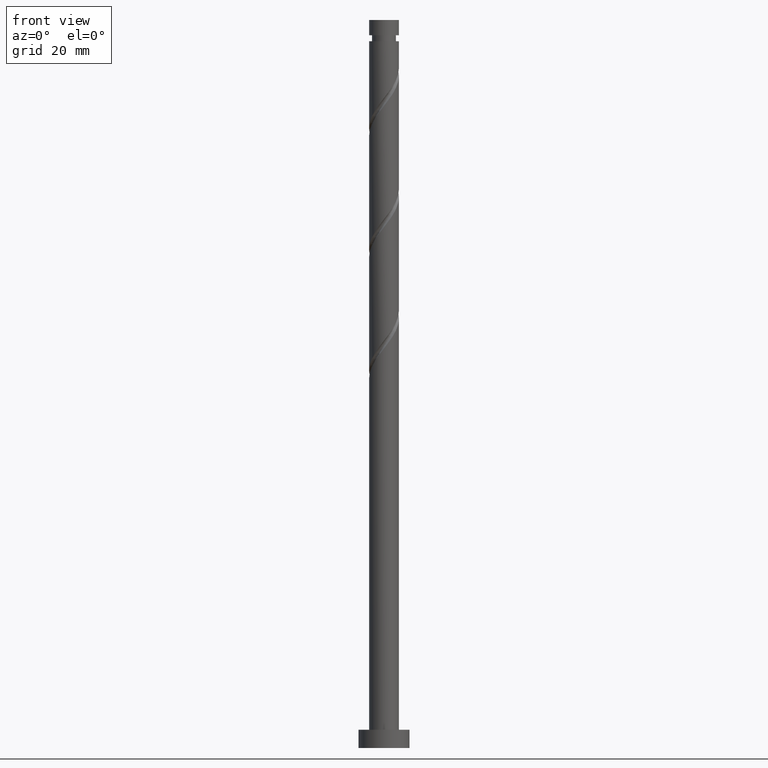
[diagram: clean part render]
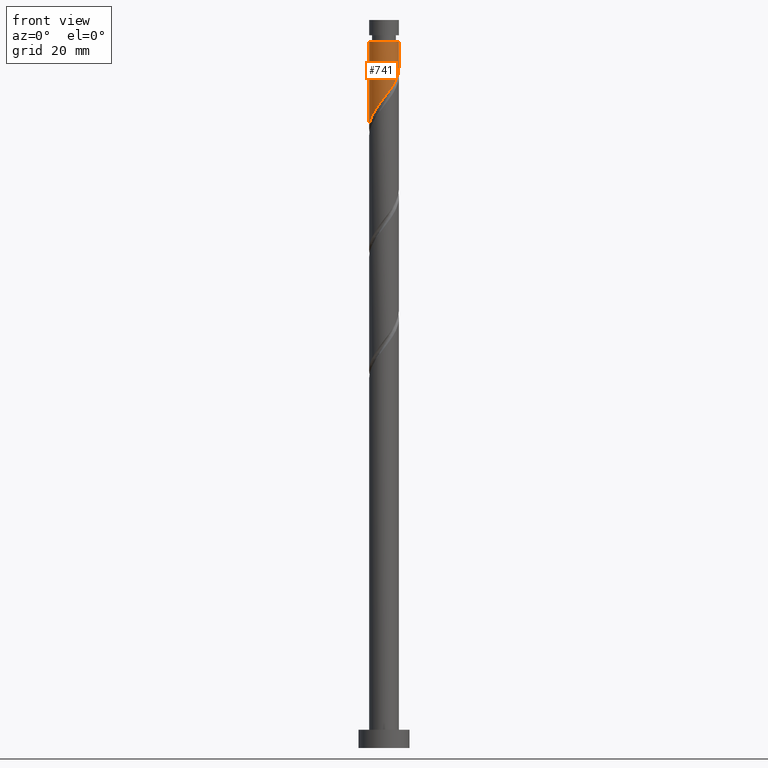
[diagram: same view with one face highlighted and labeled with its STEP entity id]
A machine part, front view. The second image highlights one B-rep face of the part: STEP entity #741.
In plain terms, the highlighted cylindrical surface (edge-blend (fillet) strip) has radius 4.1 mm, axis along (-0, -0, -1).
Its self-contained STEP definition (entity closure, byte-faithful):
#4 = CARTESIAN_POINT ( 'NONE',  ( -0.8158896984274295328, -4.017999999999999794, 177.5030105657672550 ) ) ;
#44 = EDGE_CURVE ( 'NONE', #384, #704, #992, .T. ) ;
#86 = FACE_OUTER_BOUND ( 'NONE', #113, .T. ) ;
#113 = EDGE_LOOP ( 'NONE', ( #807, #1036, #216, #171 ) ) ;
#143 = CARTESIAN_POINT ( 'NONE',  ( -4.099999999999999645, -0.1260420017964588579, 170.3964075756721286 ) ) ;
#171 = ORIENTED_EDGE ( 'NONE', *, *, #861, .F. ) ;
#199 = DIRECTION ( 'NONE',  ( -0.000000000000000000, -0.000000000000000000, -1.000000000000000000 ) ) ;
#216 = ORIENTED_EDGE ( 'NONE', *, *, #44, .T. ) ;
#247 = CARTESIAN_POINT ( 'NONE',  ( -4.099999999999988098, 0.000000000000000000, 194.1696772324338838 ) ) ;
#261 = CARTESIAN_POINT ( 'NONE',  ( -4.059101608817096363, -0.7906019473366217021, 171.2530105657672550 ) ) ;
#268 = CARTESIAN_POINT ( 'NONE',  ( -3.119984136109578809, -2.714232175083510334, 174.0307883435450265 ) ) ;
#326 = CARTESIAN_POINT ( 'NONE',  ( 4.099999999999988098, 5.021051876504139497E-16, 194.1696772324338838 ) ) ;
#334 = AXIS2_PLACEMENT_3D ( 'NONE', #1066, #523, #428 ) ;
#372 = CARTESIAN_POINT ( 'NONE',  ( -2.311178274938777921, -3.429258271300809291, 175.4196772324339122 ) ) ;
#382 = CARTESIAN_POINT ( 'NONE',  ( 3.429258271300807515, -2.311178274938780142, 183.7530105657672266 ) ) ;
#384 = VERTEX_POINT ( 'NONE', #247 ) ;
#392 = CARTESIAN_POINT ( 'NONE',  ( -0.2869099631212738699, -4.125413916553799965, 178.1974550102116837 ) ) ;
#401 = CARTESIAN_POINT ( 'NONE',  ( 3.910586083446199179, -1.344869433733588915, 185.1418994546560839 ) ) ;
#409 = CARTESIAN_POINT ( 'NONE',  ( 0.7906019473366207029, -4.059101608817097251, 179.5863438991005125 ) ) ;
#428 = DIRECTION ( 'NONE',  ( -1.000000000000000000, 0.000000000000000000, 0.000000000000000000 ) ) ;
#477 = CARTESIAN_POINT ( 'NONE',  ( 4.099999999999999645, 5.021051876504147385E-16, 200.0000000000000000 ) ) ;
#521 = CARTESIAN_POINT ( 'NONE',  ( -1.828023854336182419, -3.669922177373505345, 176.1141216768783124 ) ) ;
#523 = DIRECTION ( 'NONE',  ( -0.000000000000000000, -0.000000000000000000, -1.000000000000000000 ) ) ;
#529 = CARTESIAN_POINT ( 'NONE',  ( 0.2518459921076732222, -4.092257762685446387, 178.8918994546561123 ) ) ;
#540 = CARTESIAN_POINT ( 'NONE',  ( -1.344869433733587361, -3.910586083446200956, 176.8085661213227411 ) ) ;
#580 = EDGE_CURVE ( 'NONE', #1131, #384, #1112, .T. ) ;
#649 = CARTESIAN_POINT ( 'NONE',  ( -4.092257762685445499, -0.2518459921076746100, 170.5585661213227411 ) ) ;
#659 = CARTESIAN_POINT ( 'NONE',  ( 4.100000000000001421, -0.4120655042562799131, 186.3664841851213794 ) ) ;
#673 = CARTESIAN_POINT ( 'NONE',  ( 1.814235641615018935, -3.716168234422080996, 180.9752327879894551 ) ) ;
#683 = EDGE_CURVE ( 'NONE', #1131, #996, #749, .T. ) ;
#704 = VERTEX_POINT ( 'NONE', #815 ) ;
#741 = ADVANCED_FACE ( 'NONE', ( #86 ), #907, .T. ) ;
#749 = LINE ( 'NONE', #477, #1714 ) ;
#801 = CARTESIAN_POINT ( 'NONE',  ( -2.715581205524179254, -3.071745223192158480, 174.7252327879894267 ) ) ;
#807 = ORIENTED_EDGE ( 'NONE', *, *, #683, .F. ) ;
#811 =( BOUNDED_CURVE ( )  B_SPLINE_CURVE ( 2, ( #1332, #659, #926, #401, #1212, #382, #1220, #1643, #1634, #673, #1480, #409, #529, #392, #4, #540, #521, #372, #801, #268, #934, #1089, #1073, #261, #649, #143, #1227 ),
 .UNSPECIFIED., .F., .T. ) 
 B_SPLINE_CURVE_WITH_KNOTS ( ( 3, 2, 2, 2, 2, 2, 2, 2, 2, 2, 2, 2, 2, 3 ),
 ( 0.3045317669814462946, 0.3125000000000000000, 0.3229166666666666852, 0.3333333333333333148, 0.3437500000000000000, 0.3541666666666666852, 0.3645833333333333148, 0.3750000000000000000, 0.3854166666666666852, 0.3958333333333333148, 0.4062500000000000000, 0.4166666666666666852, 0.4270833333333333148, 0.4295317669814462946 ),
 .UNSPECIFIED. ) 
 CURVE ( )  GEOMETRIC_REPRESENTATION_ITEM ( )  RATIONAL_B_SPLINE_CURVE ( ( 0.9062941362546406143, 0.9031415850403449186, 0.9090909090909202739, 0.9013135103398387526, 0.9090909090909202739, 0.9013135103398387526, 0.9090909090909202739, 0.9013135103398387526, 0.9090909090909202739, 0.9013135103398387526, 0.9090909090909202739, 0.9013135103398387526, 0.9090909090909202739, 0.9013135103398387526, 0.9090909090909202739, 0.9013135103398387526, 0.9090909090909202739, 0.9013135103398387526, 0.9090909090909202739, 0.9013135103398387526, 0.9090909090909202739, 0.9013135103398387526, 0.9090909090909202739, 0.9013135103398387526, 0.9090909090909202739, 0.9072628343904141079, 0.9062941362546406143 ) ) 
 REPRESENTATION_ITEM ( '' )  );
#815 = CARTESIAN_POINT ( 'NONE',  ( -4.099999999999999645, -2.661773630964386005E-15, 170.2332438876439369 ) ) ;
#861 = EDGE_CURVE ( 'NONE', #996, #704, #811, .T. ) ;
#907 = CYLINDRICAL_SURFACE ( 'NONE', #1509, 4.099999999999999645 ) ;
#926 = CARTESIAN_POINT ( 'NONE',  ( 4.017999999999999794, -0.8158896984274296438, 185.8363438991005978 ) ) ;
#934 = CARTESIAN_POINT ( 'NONE',  ( -3.418076185265829903, -2.264233908349265523, 173.3363438991005125 ) ) ;
#992 = LINE ( 'NONE', #1415, #1697 ) ;
#996 = VERTEX_POINT ( 'NONE', #1461 ) ;
#1015 = DIRECTION ( 'NONE',  ( -0.000000000000000000, -0.000000000000000000, -1.000000000000000000 ) ) ;
#1036 = ORIENTED_EDGE ( 'NONE', *, *, #580, .T. ) ;
#1066 = CARTESIAN_POINT ( 'NONE',  ( 0.000000000000000000, 0.000000000000000000, 194.1696772324338838 ) ) ;
#1073 = CARTESIAN_POINT ( 'NONE',  ( -3.887634921619589345, -1.302418794475820762, 171.9474550102116552 ) ) ;
#1089 = CARTESIAN_POINT ( 'NONE',  ( -3.716168234422080996, -1.814235641615018935, 172.6418994546560839 ) ) ;
#1112 = CIRCLE ( 'NONE', #334, 4.099999999999988098 ) ;
#1131 = VERTEX_POINT ( 'NONE', #326 ) ;
#1198 = DIRECTION ( 'NONE',  ( -1.000000000000000000, 0.000000000000000000, 0.000000000000000000 ) ) ;
#1212 = CARTESIAN_POINT ( 'NONE',  ( 3.669922177373503569, -1.828023854336184195, 184.4474550102116837 ) ) ;
#1220 = CARTESIAN_POINT ( 'NONE',  ( 3.071745223192158480, -2.715581205524179698, 183.0585661213227979 ) ) ;
#1227 = CARTESIAN_POINT ( 'NONE',  ( -4.099999999999999645, -2.661773630964386005E-15, 170.2332438876439369 ) ) ;
#1332 = CARTESIAN_POINT ( 'NONE',  ( 4.100000000000000533, 1.510332228805635030E-15, 186.8999105543106225 ) ) ;
#1415 = CARTESIAN_POINT ( 'NONE',  ( -4.099999999999999645, 0.000000000000000000, 200.0000000000000000 ) ) ;
#1458 = DIRECTION ( 'NONE',  ( -0.000000000000000000, -0.000000000000000000, -1.000000000000000000 ) ) ;
#1461 = CARTESIAN_POINT ( 'NONE',  ( 4.100000000000000533, 1.510332228805635030E-15, 186.8999105543106225 ) ) ;
#1480 = CARTESIAN_POINT ( 'NONE',  ( 1.302418794475820096, -3.887634921619589345, 180.2807883435449980 ) ) ;
#1509 = AXIS2_PLACEMENT_3D ( 'NONE', #1621, #1458, #1198 ) ;
#1621 = CARTESIAN_POINT ( 'NONE',  ( 0.000000000000000000, 0.000000000000000000, 200.0000000000000000 ) ) ;
#1634 = CARTESIAN_POINT ( 'NONE',  ( 2.264233908349262858, -3.418076185265831679, 181.6696772324338554 ) ) ;
#1643 = CARTESIAN_POINT ( 'NONE',  ( 2.714232175083509890, -3.119984136109578809, 182.3641216768782840 ) ) ;
#1697 = VECTOR ( 'NONE', #199, 1000.000000000000000 ) ;
#1714 = VECTOR ( 'NONE', #1015, 1000.000000000000000 ) ;